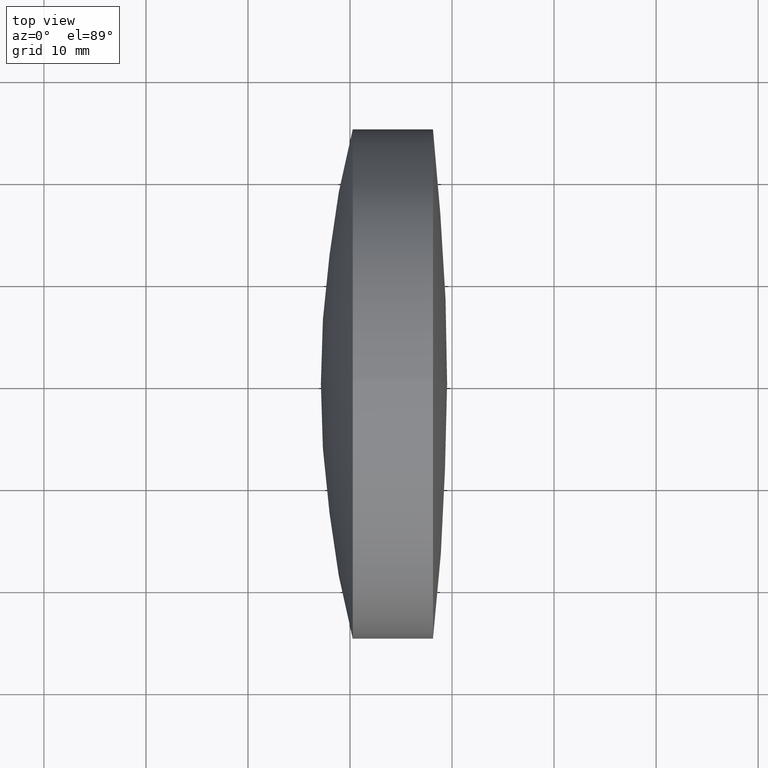
[diagram: clean part render]
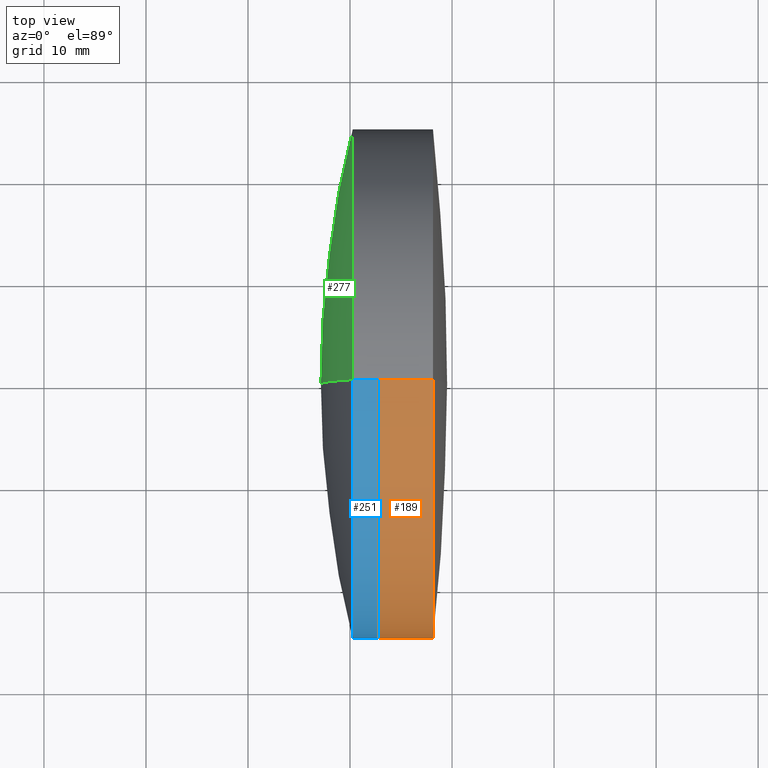
[diagram: same view with three faces highlighted in distinct colors, each labeled with its STEP entity id]
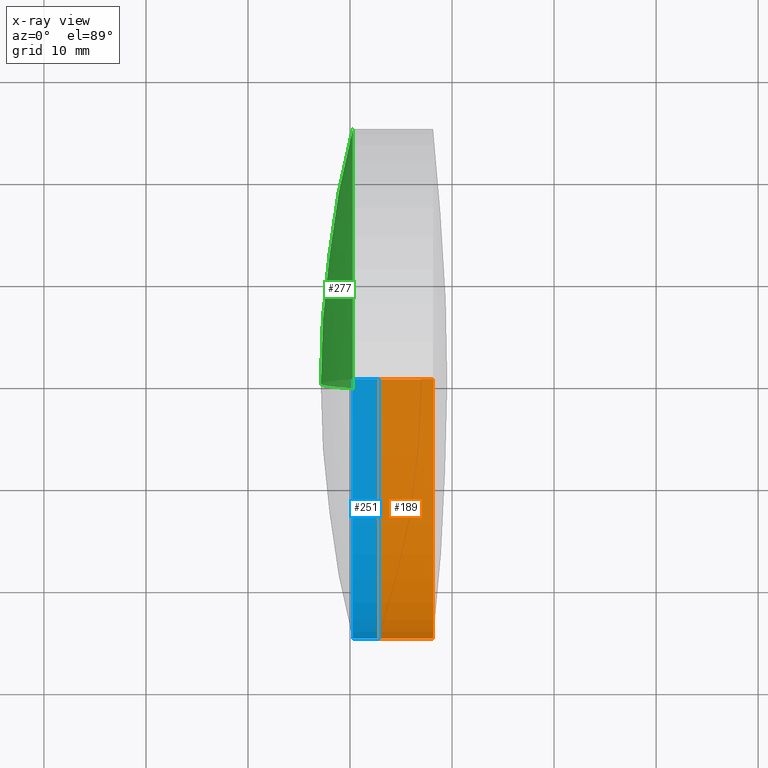
[diagram: x-ray of the same camera — body ghosted, the three highlighted faces saturated]
A machine part, top view with three faces highlighted in distinct colors.
The next image is the same camera in x-ray (body ghosted, the three faces saturated) — at least one of them is partly hidden behind the body in this view.
Their STEP definitions:

[orange] entity #189 — the highlighted cylindrical surface (partial cylindrical patch) has radius 25 mm, axis along (-1, -0, -0).
#8 = CARTESIAN_POINT ( 'NONE',  ( 232.7655238104919100, 0.0000000000000000000, 0.0000000000000000000 ) ) ;
#18 = DIRECTION ( 'NONE',  ( -1.000000000000000000, -0.0000000000000000000, -0.0000000000000000000 ) ) ;
#23 = DIRECTION ( 'NONE',  ( 0.0000000000000000000, 0.0000000000000000000, 1.000000000000000000 ) ) ;
#28 = CARTESIAN_POINT ( 'NONE',  ( -0.5519199926577972300, 0.0000000000000000000, 0.0000000000000000000 ) ) ;
#38 = CYLINDRICAL_SURFACE ( 'NONE', #109, 24.99999999999995000 ) ;
#44 = CARTESIAN_POINT ( 'NONE',  ( 232.7655238104919100, 3.061616997868378700E-015, -24.99999999999995400 ) ) ;
#46 = LINE ( 'NONE', #238, #182 ) ;
#55 = DIRECTION ( 'NONE',  ( 0.0000000000000000000, 0.0000000000000000000, 1.000000000000000000 ) ) ;
#57 = VECTOR ( 'NONE', #156, 1000.000000000000000 ) ;
#109 = AXIS2_PLACEMENT_3D ( 'NONE', #28, #279, #55 ) ;
#115 = ORIENTED_EDGE ( 'NONE', *, *, #149, .F. ) ;
#118 = VERTEX_POINT ( 'NONE', #290 ) ;
#137 = CIRCLE ( 'NONE', #158, 24.99999999999997200 ) ;
#138 = LINE ( 'NONE', #157, #57 ) ;
#147 = ORIENTED_EDGE ( 'NONE', *, *, #269, .F. ) ;
#148 = CARTESIAN_POINT ( 'NONE',  ( 238.1292022998895300, 0.0000000000000000000, 0.0000000000000000000 ) ) ;
#149 = EDGE_CURVE ( 'NONE', #272, #260, #137, .T. ) ;
#154 = CARTESIAN_POINT ( 'NONE',  ( 232.7655238104919100, 0.0000000000000000000, 24.99999999999996100 ) ) ;
#155 = ORIENTED_EDGE ( 'NONE', *, *, #302, .T. ) ;
#156 = DIRECTION ( 'NONE',  ( -1.000000000000000000, -0.0000000000000000000, -0.0000000000000000000 ) ) ;
#157 = CARTESIAN_POINT ( 'NONE',  ( -0.5519199926577972300, 3.061616997868376700E-015, -24.99999999999995000 ) ) ;
#158 = AXIS2_PLACEMENT_3D ( 'NONE', #8, #18, #23 ) ;
#182 = VECTOR ( 'NONE', #286, 1000.000000000000000 ) ;
#189 = ADVANCED_FACE ( 'NONE', ( #254 ), #38, .T. ) ;
#200 = ORIENTED_EDGE ( 'NONE', *, *, #310, .T. ) ;
#216 = DIRECTION ( 'NONE',  ( 0.0000000000000000000, 0.0000000000000000000, 1.000000000000000000 ) ) ;
#219 = CARTESIAN_POINT ( 'NONE',  ( 238.1292022998895300, 3.061616997868375200E-015, -24.99999999999992900 ) ) ;
#227 = AXIS2_PLACEMENT_3D ( 'NONE', #148, #235, #216 ) ;
#228 = EDGE_LOOP ( 'NONE', ( #147, #155, #200, #115 ) ) ;
#235 = DIRECTION ( 'NONE',  ( -1.000000000000000000, -0.0000000000000000000, -0.0000000000000000000 ) ) ;
#238 = CARTESIAN_POINT ( 'NONE',  ( -0.5519199926577972300, 0.0000000000000000000, 24.99999999999995000 ) ) ;
#254 = FACE_OUTER_BOUND ( 'NONE', #228, .T. ) ;
#260 = VERTEX_POINT ( 'NONE', #154 ) ;
#269 = EDGE_CURVE ( 'NONE', #274, #272, #138, .T. ) ;
#272 = VERTEX_POINT ( 'NONE', #44 ) ;
#274 = VERTEX_POINT ( 'NONE', #219 ) ;
#279 = DIRECTION ( 'NONE',  ( -1.000000000000000000, -0.0000000000000000000, -0.0000000000000000000 ) ) ;
#286 = DIRECTION ( 'NONE',  ( -1.000000000000000000, -0.0000000000000000000, -0.0000000000000000000 ) ) ;
#290 = CARTESIAN_POINT ( 'NONE',  ( 238.1292022998895300, 0.0000000000000000000, 24.99999999999992900 ) ) ;
#302 = EDGE_CURVE ( 'NONE', #274, #118, #341, .T. ) ;
#310 = EDGE_CURVE ( 'NONE', #118, #260, #46, .T. ) ;
#341 = CIRCLE ( 'NONE', #227, 24.99999999999992900 ) ;

[blue] entity #251 — the highlighted cylindrical surface (partial cylindrical patch) has radius 25 mm, axis along (-1, -0, -0).
#15 = CARTESIAN_POINT ( 'NONE',  ( 124.5233095260452400, 0.0000000000000000000, 24.99999999999997500 ) ) ;
#16 = EDGE_CURVE ( 'NONE', #106, #280, #146, .T. ) ;
#32 = ORIENTED_EDGE ( 'NONE', *, *, #224, .F. ) ;
#37 = CARTESIAN_POINT ( 'NONE',  ( 232.7655238104919400, 0.0000000000000000000, 0.0000000000000000000 ) ) ;
#43 = EDGE_CURVE ( 'NONE', #144, #280, #223, .T. ) ;
#51 = EDGE_CURVE ( 'NONE', #308, #144, #62, .T. ) ;
#62 = CIRCLE ( 'NONE', #247, 24.99999999999997200 ) ;
#68 = DIRECTION ( 'NONE',  ( -1.000000000000000000, -0.0000000000000000000, -0.0000000000000000000 ) ) ;
#69 = VECTOR ( 'NONE', #206, 1000.000000000000000 ) ;
#98 = CARTESIAN_POINT ( 'NONE',  ( 124.5233095260452400, 0.0000000000000000000, 0.0000000000000000000 ) ) ;
#106 = VERTEX_POINT ( 'NONE', #188 ) ;
#107 = CARTESIAN_POINT ( 'NONE',  ( 124.5233095260452400, 3.061616997868379900E-015, -24.99999999999997500 ) ) ;
#113 = DIRECTION ( 'NONE',  ( -1.000000000000000000, -0.0000000000000000000, -0.0000000000000000000 ) ) ;
#117 = DIRECTION ( 'NONE',  ( -1.000000000000000000, -0.0000000000000000000, -0.0000000000000000000 ) ) ;
#120 = DIRECTION ( 'NONE',  ( 0.0000000000000000000, 0.0000000000000000000, 1.000000000000000000 ) ) ;
#124 = CARTESIAN_POINT ( 'NONE',  ( 230.2651347242161800, 0.0000000000000000000, 24.99999999999996800 ) ) ;
#128 = VECTOR ( 'NONE', #113, 1000.000000000000000 ) ;
#140 = AXIS2_PLACEMENT_3D ( 'NONE', #98, #117, #120 ) ;
#144 = VERTEX_POINT ( 'NONE', #234 ) ;
#146 = CIRCLE ( 'NONE', #164, 24.99999999999997500 ) ;
#153 = CARTESIAN_POINT ( 'NONE',  ( 232.7655238104919400, 3.061616997868379500E-015, -24.99999999999997200 ) ) ;
#164 = AXIS2_PLACEMENT_3D ( 'NONE', #347, #68, #204 ) ;
#188 = CARTESIAN_POINT ( 'NONE',  ( 230.2651347242161800, 3.061616997868379100E-015, -25.00000000000005000 ) ) ;
#204 = DIRECTION ( 'NONE',  ( 0.0000000000000000000, 0.0000000000000000000, 1.000000000000000000 ) ) ;
#206 = DIRECTION ( 'NONE',  ( -1.000000000000000000, -0.0000000000000000000, -0.0000000000000000000 ) ) ;
#209 = ORIENTED_EDGE ( 'NONE', *, *, #16, .F. ) ;
#220 = CYLINDRICAL_SURFACE ( 'NONE', #140, 24.99999999999997500 ) ;
#223 = LINE ( 'NONE', #15, #69 ) ;
#224 = EDGE_CURVE ( 'NONE', #308, #106, #237, .T. ) ;
#234 = CARTESIAN_POINT ( 'NONE',  ( 232.7655238104919400, 0.0000000000000000000, 24.99999999999997200 ) ) ;
#237 = LINE ( 'NONE', #107, #128 ) ;
#247 = AXIS2_PLACEMENT_3D ( 'NONE', #37, #334, #287 ) ;
#251 = ADVANCED_FACE ( 'NONE', ( #270 ), #220, .T. ) ;
#256 = ORIENTED_EDGE ( 'NONE', *, *, #43, .T. ) ;
#270 = FACE_OUTER_BOUND ( 'NONE', #301, .T. ) ;
#280 = VERTEX_POINT ( 'NONE', #124 ) ;
#287 = DIRECTION ( 'NONE',  ( 0.0000000000000000000, 0.0000000000000000000, 1.000000000000000000 ) ) ;
#293 = ORIENTED_EDGE ( 'NONE', *, *, #51, .T. ) ;
#301 = EDGE_LOOP ( 'NONE', ( #32, #293, #256, #209 ) ) ;
#308 = VERTEX_POINT ( 'NONE', #153 ) ;
#334 = DIRECTION ( 'NONE',  ( -1.000000000000000000, -0.0000000000000000000, -0.0000000000000000000 ) ) ;
#347 = CARTESIAN_POINT ( 'NONE',  ( 230.2651347242161800, 0.0000000000000000000, 0.0000000000000000000 ) ) ;

[green] entity #277 — the highlighted spherical surface has radius 101.707 mm.
#7 = DIRECTION ( 'NONE',  ( -0.0000000000000000000, 1.000000000000000000, 1.224646799147353200E-016 ) ) ;
#9 = EDGE_CURVE ( 'NONE', #106, #64, #21, .T. ) ;
#21 = CIRCLE ( 'NONE', #259, 101.7070000000000400 ) ;
#64 = VERTEX_POINT ( 'NONE', #73 ) ;
#73 = CARTESIAN_POINT ( 'NONE',  ( 227.1447151953938700, 0.0000000000000000000, -7.602033797763998700E-014 ) ) ;
#88 = CIRCLE ( 'NONE', #291, 24.99999999999997500 ) ;
#96 = EDGE_CURVE ( 'NONE', #280, #64, #199, .T. ) ;
#101 = FACE_OUTER_BOUND ( 'NONE', #211, .T. ) ;
#104 = ORIENTED_EDGE ( 'NONE', *, *, #96, .F. ) ;
#106 = VERTEX_POINT ( 'NONE', #188 ) ;
#124 = CARTESIAN_POINT ( 'NONE',  ( 230.2651347242161800, 0.0000000000000000000, 24.99999999999996800 ) ) ;
#130 = ORIENTED_EDGE ( 'NONE', *, *, #9, .T. ) ;
#132 = CARTESIAN_POINT ( 'NONE',  ( 328.8517151953939200, 0.0000000000000000000, -8.224809557768397600E-014 ) ) ;
#160 = CARTESIAN_POINT ( 'NONE',  ( 230.2651347242161800, 0.0000000000000000000, 0.0000000000000000000 ) ) ;
#162 = DIRECTION ( 'NONE',  ( -1.000000000000000000, -0.0000000000000000000, -0.0000000000000000000 ) ) ;
#165 = DIRECTION ( 'NONE',  ( 0.0000000000000000000, 1.000000000000000000, 0.0000000000000000000 ) ) ;
#167 = DIRECTION ( 'NONE',  ( 0.0000000000000000000, 0.0000000000000000000, 1.000000000000000000 ) ) ;
#186 = AXIS2_PLACEMENT_3D ( 'NONE', #242, #165, #167 ) ;
#188 = CARTESIAN_POINT ( 'NONE',  ( 230.2651347242161800, 3.061616997868379100E-015, -25.00000000000005000 ) ) ;
#199 = CIRCLE ( 'NONE', #273, 101.7070000000000400 ) ;
#211 = EDGE_LOOP ( 'NONE', ( #320, #130, #104 ) ) ;
#225 = CARTESIAN_POINT ( 'NONE',  ( 328.8517151953939200, 0.0000000000000000000, -8.224809557768397600E-014 ) ) ;
#240 = DIRECTION ( 'NONE',  ( 0.0000000000000000000, 0.0000000000000000000, 1.000000000000000000 ) ) ;
#242 = CARTESIAN_POINT ( 'NONE',  ( 328.8517151953939200, 0.0000000000000000000, -8.224809557768397600E-014 ) ) ;
#252 = DIRECTION ( 'NONE',  ( 0.0000000000000000000, -1.224646799147353200E-016, 1.000000000000000000 ) ) ;
#259 = AXIS2_PLACEMENT_3D ( 'NONE', #225, #7, #252 ) ;
#261 = DIRECTION ( 'NONE',  ( 0.0000000000000000000, 0.0000000000000000000, -1.000000000000000000 ) ) ;
#265 = EDGE_CURVE ( 'NONE', #280, #106, #88, .T. ) ;
#273 = AXIS2_PLACEMENT_3D ( 'NONE', #132, #297, #261 ) ;
#277 = ADVANCED_FACE ( 'NONE', ( #101 ), #318, .T. ) ;
#280 = VERTEX_POINT ( 'NONE', #124 ) ;
#291 = AXIS2_PLACEMENT_3D ( 'NONE', #160, #162, #240 ) ;
#297 = DIRECTION ( 'NONE',  ( 0.0000000000000000000, -1.000000000000000000, 0.0000000000000000000 ) ) ;
#318 = SPHERICAL_SURFACE ( 'NONE', #186, 101.7070000000000400 ) ;
#320 = ORIENTED_EDGE ( 'NONE', *, *, #265, .T. ) ;